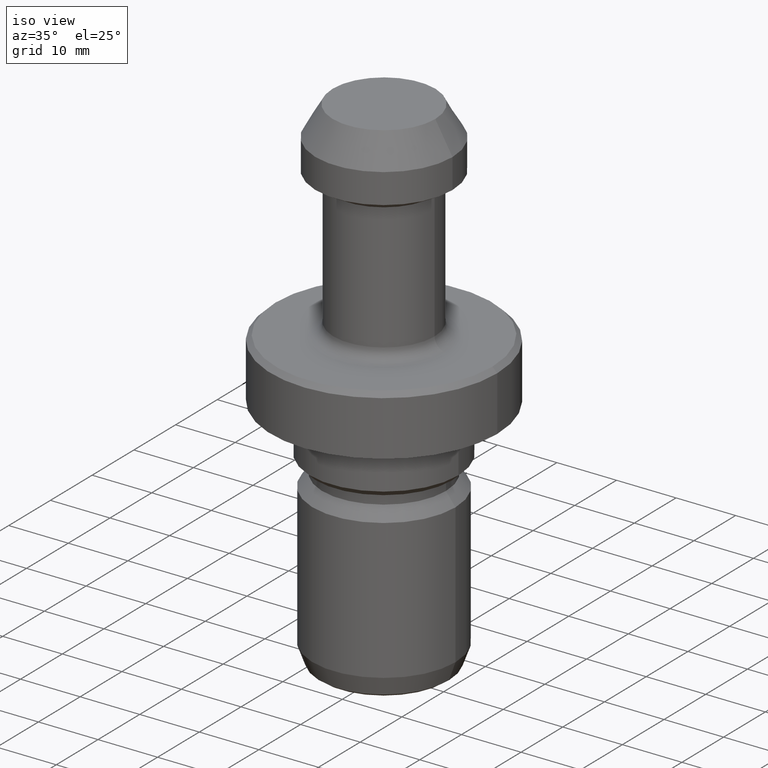
[diagram: clean part render]
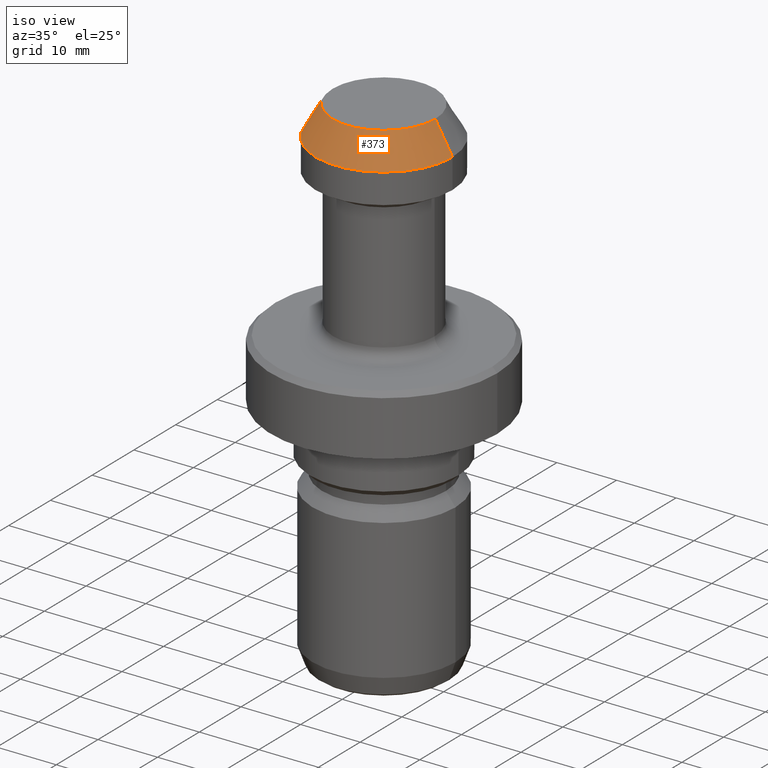
[diagram: same view with one face highlighted and labeled with its STEP entity id]
A machine part, iso view. The second image highlights one B-rep face of the part: STEP entity #373.
In plain terms, the highlighted conical surface has half-angle 30 deg.
Its self-contained STEP definition (entity closure, byte-faithful):
#11 = DIRECTION ( 'NONE',  ( 0.4999999999999981100, 6.123233995736742600E-017, -0.8660254037844397100 ) ) ;
#68 = CARTESIAN_POINT ( 'NONE',  ( 0.0000000000000000000, 0.0000000000000000000, -4.999999999999999100 ) ) ;
#75 = ORIENTED_EDGE ( 'NONE', *, *, #643, .F. ) ;
#81 = VECTOR ( 'NONE', #124, 1000.000000000000000 ) ;
#83 = DIRECTION ( 'NONE',  ( 1.000000000000000000, 0.0000000000000000000, 0.0000000000000000000 ) ) ;
#124 = DIRECTION ( 'NONE',  ( -0.4999999999999981100, 0.0000000000000000000, -0.8660254037844397100 ) ) ;
#175 = CIRCLE ( 'NONE', #674, 8.613248654051886900 ) ;
#192 = AXIS2_PLACEMENT_3D ( 'NONE', #1036, #1131, #765 ) ;
#275 = VERTEX_POINT ( 'NONE', #528 ) ;
#364 = CARTESIAN_POINT ( 'NONE',  ( 0.0000000000000000000, 0.0000000000000000000, 0.0000000000000000000 ) ) ;
#373 = ADVANCED_FACE ( 'NONE', ( #1044 ), #525, .T. ) ;
#396 = EDGE_CURVE ( 'NONE', #843, #275, #1130, .T. ) ;
#505 = DIRECTION ( 'NONE',  ( 1.000000000000000000, 0.0000000000000000000, 0.0000000000000000000 ) ) ;
#525 = CONICAL_SURFACE ( 'NONE', #192, 11.50000000000000000, 0.5235987755982967100 ) ;
#528 = CARTESIAN_POINT ( 'NONE',  ( -11.50000000000000000, 1.408343819019456200E-015, -4.999999999999999100 ) ) ;
#531 = VERTEX_POINT ( 'NONE', #619 ) ;
#545 = DIRECTION ( 'NONE',  ( -0.0000000000000000000, -0.0000000000000000000, 1.000000000000000000 ) ) ;
#583 = CARTESIAN_POINT ( 'NONE',  ( -11.50000000000000000, 0.0000000000000000000, -4.999999999999999100 ) ) ;
#613 = ORIENTED_EDGE ( 'NONE', *, *, #659, .F. ) ;
#619 = CARTESIAN_POINT ( 'NONE',  ( 8.613248654051886900, 1.231581279231972700E-015, 0.0000000000000000000 ) ) ;
#626 = CARTESIAN_POINT ( 'NONE',  ( 11.50000000000000000, 1.408343819019456200E-015, -4.999999999999999100 ) ) ;
#641 = ORIENTED_EDGE ( 'NONE', *, *, #396, .T. ) ;
#643 = EDGE_CURVE ( 'NONE', #843, #531, #175, .T. ) ;
#659 = EDGE_CURVE ( 'NONE', #531, #1039, #812, .T. ) ;
#674 = AXIS2_PLACEMENT_3D ( 'NONE', #364, #545, #83 ) ;
#759 = ORIENTED_EDGE ( 'NONE', *, *, #896, .T. ) ;
#765 = DIRECTION ( 'NONE',  ( -1.000000000000000000, 0.0000000000000000000, 0.0000000000000000000 ) ) ;
#783 = CARTESIAN_POINT ( 'NONE',  ( 11.50000000000000000, 0.0000000000000000000, -4.999999999999999100 ) ) ;
#792 = EDGE_LOOP ( 'NONE', ( #613, #75, #641, #759 ) ) ;
#803 = AXIS2_PLACEMENT_3D ( 'NONE', #68, #977, #505 ) ;
#812 = LINE ( 'NONE', #626, #1032 ) ;
#843 = VERTEX_POINT ( 'NONE', #1023 ) ;
#855 = CIRCLE ( 'NONE', #803, 11.50000000000000000 ) ;
#896 = EDGE_CURVE ( 'NONE', #275, #1039, #855, .T. ) ;
#977 = DIRECTION ( 'NONE',  ( -0.0000000000000000000, -0.0000000000000000000, 1.000000000000000000 ) ) ;
#1023 = CARTESIAN_POINT ( 'NONE',  ( -8.613248654051886900, 0.0000000000000000000, 0.0000000000000000000 ) ) ;
#1032 = VECTOR ( 'NONE', #11, 1000.000000000000000 ) ;
#1036 = CARTESIAN_POINT ( 'NONE',  ( 0.0000000000000000000, 0.0000000000000000000, -4.999999999999999100 ) ) ;
#1039 = VERTEX_POINT ( 'NONE', #783 ) ;
#1044 = FACE_OUTER_BOUND ( 'NONE', #792, .T. ) ;
#1130 = LINE ( 'NONE', #583, #81 ) ;
#1131 = DIRECTION ( 'NONE',  ( 0.0000000000000000000, 0.0000000000000000000, -1.000000000000000000 ) ) ;